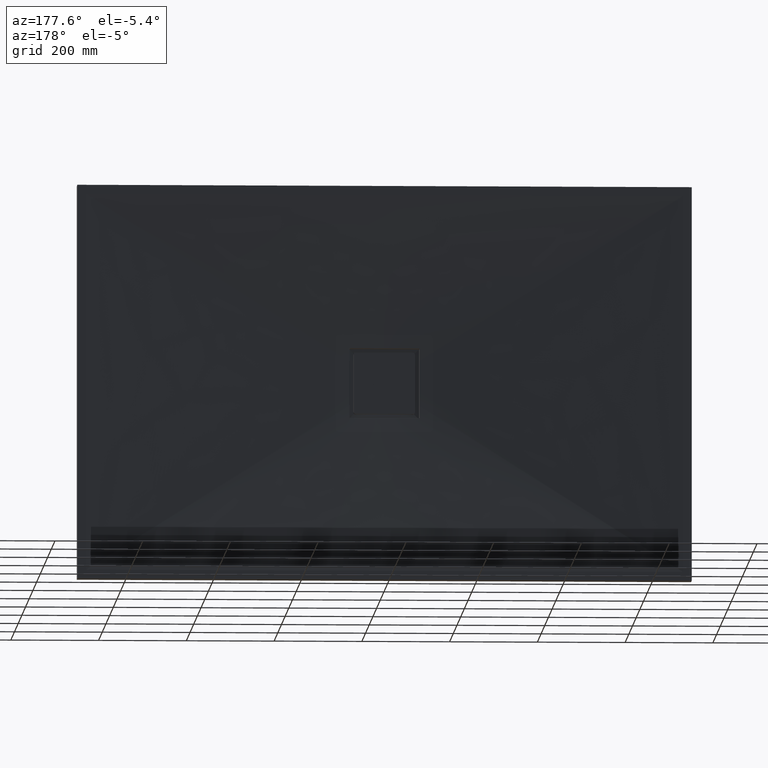
[diagram: clean part render]
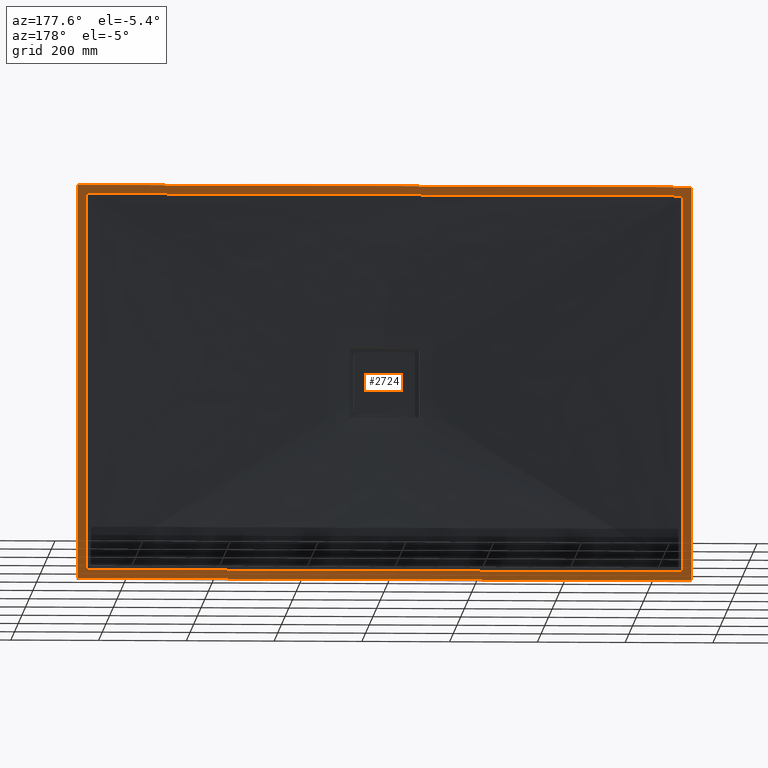
[diagram: same view with one face highlighted and labeled with its STEP entity id]
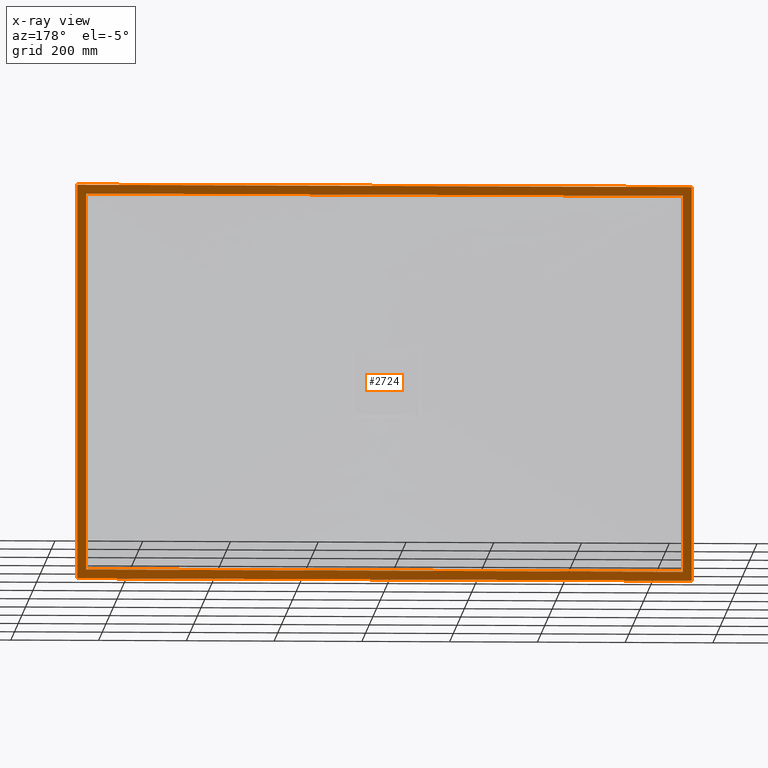
[diagram: x-ray of the same camera — body ghosted, the highlighted face saturated]
A machine part, auxiliary view. The second image highlights one B-rep face of the part: STEP entity #2724.
The next image is the same camera in x-ray: the body ghosted, the highlighted face saturated — about 0% of this face is hidden behind the body in this view.
In plain terms, the highlighted planar face has unit normal (0, 1, 0).
Its self-contained STEP definition (entity closure, byte-faithful):
#13 = LINE ( 'NONE', #342, #479 ) ;
#60 = CARTESIAN_POINT ( 'NONE',  ( 679.9999999999997700, 35.00000000000002800, -429.9999999999998900 ) ) ;
#113 = CARTESIAN_POINT ( 'NONE',  ( 679.9999999999997700, 35.00000000000002800, -429.9999999999998900 ) ) ;
#171 = VERTEX_POINT ( 'NONE', #1342 ) ;
#177 = DIRECTION ( 'NONE',  ( 0.0000000000000000000, 0.0000000000000000000, 1.000000000000000000 ) ) ;
#179 = ORIENTED_EDGE ( 'NONE', *, *, #812, .T. ) ;
#266 = DIRECTION ( 'NONE',  ( -0.0000000000000000000, -0.0000000000000000000, -1.000000000000000000 ) ) ;
#342 = CARTESIAN_POINT ( 'NONE',  ( -700.0000000000002300, 35.00000000000002800, -449.9999999999998900 ) ) ;
#359 = CARTESIAN_POINT ( 'NONE',  ( -679.9999999999997700, 35.00000000000002800, -429.9999999999998900 ) ) ;
#364 = CARTESIAN_POINT ( 'NONE',  ( 699.9999999999993200, 35.00000000000002800, -449.9999999999998900 ) ) ;
#433 = CARTESIAN_POINT ( 'NONE',  ( 679.9999999999997700, 35.00000000000002800, 430.0000000000001700 ) ) ;
#449 = VECTOR ( 'NONE', #1660, 1000.000000000000000 ) ;
#479 = VECTOR ( 'NONE', #177, 1000.000000000000000 ) ;
#498 = EDGE_CURVE ( 'NONE', #768, #2064, #13, .T. ) ;
#509 = VECTOR ( 'NONE', #1523, 1000.000000000000000 ) ;
#577 = DIRECTION ( 'NONE',  ( -1.000000000000000000, -0.0000000000000000000, -0.0000000000000000000 ) ) ;
#621 = FACE_BOUND ( 'NONE', #767, .T. ) ;
#630 = EDGE_CURVE ( 'NONE', #2658, #1859, #738, .T. ) ;
#635 = FACE_OUTER_BOUND ( 'NONE', #2111, .T. ) ;
#640 = LINE ( 'NONE', #359, #509 ) ;
#642 = EDGE_CURVE ( 'NONE', #3226, #768, #1141, .T. ) ;
#652 = VECTOR ( 'NONE', #577, 1000.000000000000000 ) ;
#738 = LINE ( 'NONE', #113, #449 ) ;
#767 = EDGE_LOOP ( 'NONE', ( #1579, #838, #1421, #2161 ) ) ;
#768 = VERTEX_POINT ( 'NONE', #1562 ) ;
#772 = CARTESIAN_POINT ( 'NONE',  ( -700.0000000000002300, 35.00000000000002800, -449.9999999999998900 ) ) ;
#812 = EDGE_CURVE ( 'NONE', #852, #3226, #3054, .T. ) ;
#838 = ORIENTED_EDGE ( 'NONE', *, *, #1405, .F. ) ;
#852 = VERTEX_POINT ( 'NONE', #1098 ) ;
#935 = DIRECTION ( 'NONE',  ( 1.000000000000000000, 0.0000000000000000000, 0.0000000000000000000 ) ) ;
#1098 = CARTESIAN_POINT ( 'NONE',  ( 699.9999999999993200, 35.00000000000002800, 450.0000000000001700 ) ) ;
#1125 = DIRECTION ( 'NONE',  ( 0.0000000000000000000, -0.0000000000000000000, 1.000000000000000000 ) ) ;
#1141 = LINE ( 'NONE', #772, #652 ) ;
#1239 = VECTOR ( 'NONE', #1834, 1000.000000000000000 ) ;
#1277 = VECTOR ( 'NONE', #935, 1000.000000000000000 ) ;
#1286 = LINE ( 'NONE', #1494, #1277 ) ;
#1342 = CARTESIAN_POINT ( 'NONE',  ( -679.9999999999997700, 35.00000000000002800, 430.0000000000001700 ) ) ;
#1405 = EDGE_CURVE ( 'NONE', #3283, #2658, #2220, .T. ) ;
#1421 = ORIENTED_EDGE ( 'NONE', *, *, #1484, .F. ) ;
#1474 = CARTESIAN_POINT ( 'NONE',  ( -679.9999999999997700, 35.00000000000002800, -429.9999999999998900 ) ) ;
#1484 = EDGE_CURVE ( 'NONE', #171, #3283, #1903, .T. ) ;
#1490 = PLANE ( 'NONE',  #2269 ) ;
#1494 = CARTESIAN_POINT ( 'NONE',  ( -700.0000000000002300, 35.00000000000002800, 450.0000000000001700 ) ) ;
#1523 = DIRECTION ( 'NONE',  ( 0.0000000000000000000, 0.0000000000000000000, 1.000000000000000000 ) ) ;
#1562 = CARTESIAN_POINT ( 'NONE',  ( -700.0000000000002300, 35.00000000000002800, -449.9999999999998900 ) ) ;
#1579 = ORIENTED_EDGE ( 'NONE', *, *, #630, .F. ) ;
#1660 = DIRECTION ( 'NONE',  ( -1.000000000000000000, 0.0000000000000000000, 0.0000000000000000000 ) ) ;
#1753 = DIRECTION ( 'NONE',  ( 1.000000000000000000, 0.0000000000000000000, 0.0000000000000000000 ) ) ;
#1806 = VECTOR ( 'NONE', #1753, 1000.000000000000000 ) ;
#1834 = DIRECTION ( 'NONE',  ( 0.0000000000000000000, 0.0000000000000000000, -1.000000000000000000 ) ) ;
#1859 = VERTEX_POINT ( 'NONE', #1474 ) ;
#1867 = DIRECTION ( 'NONE',  ( 0.0000000000000000000, 1.000000000000000000, 0.0000000000000000000 ) ) ;
#1900 = ORIENTED_EDGE ( 'NONE', *, *, #642, .T. ) ;
#1901 = CARTESIAN_POINT ( 'NONE',  ( 679.9999999999997700, 35.00000000000002800, 430.0000000000001700 ) ) ;
#1903 = LINE ( 'NONE', #2288, #1806 ) ;
#1992 = ORIENTED_EDGE ( 'NONE', *, *, #498, .T. ) ;
#2028 = EDGE_CURVE ( 'NONE', #2064, #852, #1286, .T. ) ;
#2064 = VERTEX_POINT ( 'NONE', #2718 ) ;
#2111 = EDGE_LOOP ( 'NONE', ( #1992, #2304, #179, #1900 ) ) ;
#2161 = ORIENTED_EDGE ( 'NONE', *, *, #2756, .F. ) ;
#2220 = LINE ( 'NONE', #1901, #1239 ) ;
#2269 = AXIS2_PLACEMENT_3D ( 'NONE', #3173, #1867, #1125 ) ;
#2288 = CARTESIAN_POINT ( 'NONE',  ( -679.9999999999997700, 35.00000000000002800, 430.0000000000001700 ) ) ;
#2304 = ORIENTED_EDGE ( 'NONE', *, *, #2028, .T. ) ;
#2642 = CARTESIAN_POINT ( 'NONE',  ( 699.9999999999993200, 35.00000000000002800, -449.9999999999998900 ) ) ;
#2658 = VERTEX_POINT ( 'NONE', #60 ) ;
#2718 = CARTESIAN_POINT ( 'NONE',  ( -700.0000000000002300, 35.00000000000002800, 450.0000000000001700 ) ) ;
#2724 = ADVANCED_FACE ( 'NONE', ( #621, #635 ), #1490, .T. ) ;
#2756 = EDGE_CURVE ( 'NONE', #1859, #171, #640, .T. ) ;
#3054 = LINE ( 'NONE', #364, #3068 ) ;
#3068 = VECTOR ( 'NONE', #266, 1000.000000000000000 ) ;
#3173 = CARTESIAN_POINT ( 'NONE',  ( -700.0000000000002300, 35.00000000000002800, 450.0000000000001700 ) ) ;
#3226 = VERTEX_POINT ( 'NONE', #2642 ) ;
#3283 = VERTEX_POINT ( 'NONE', #433 ) ;